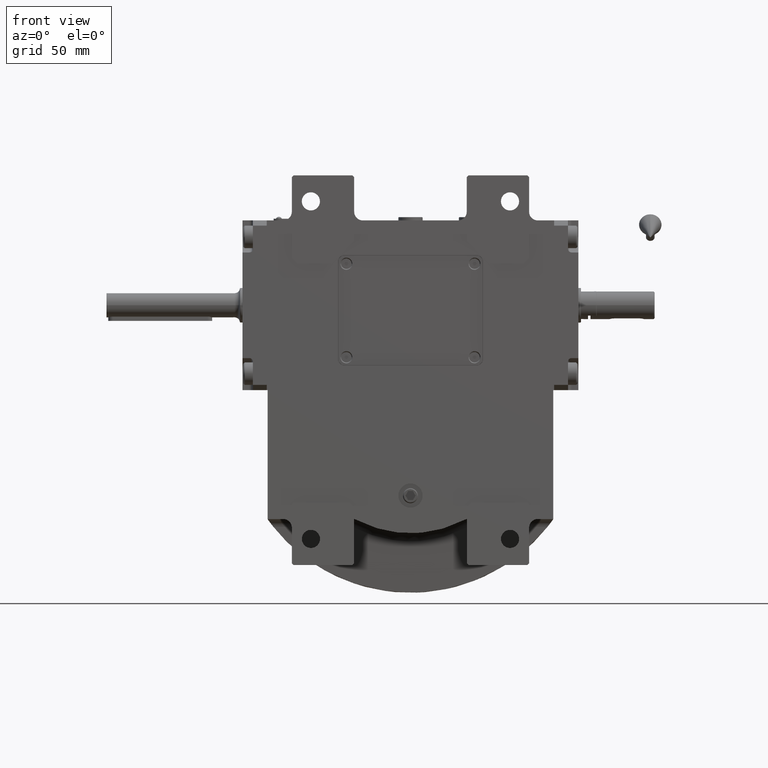
[diagram: clean part render]
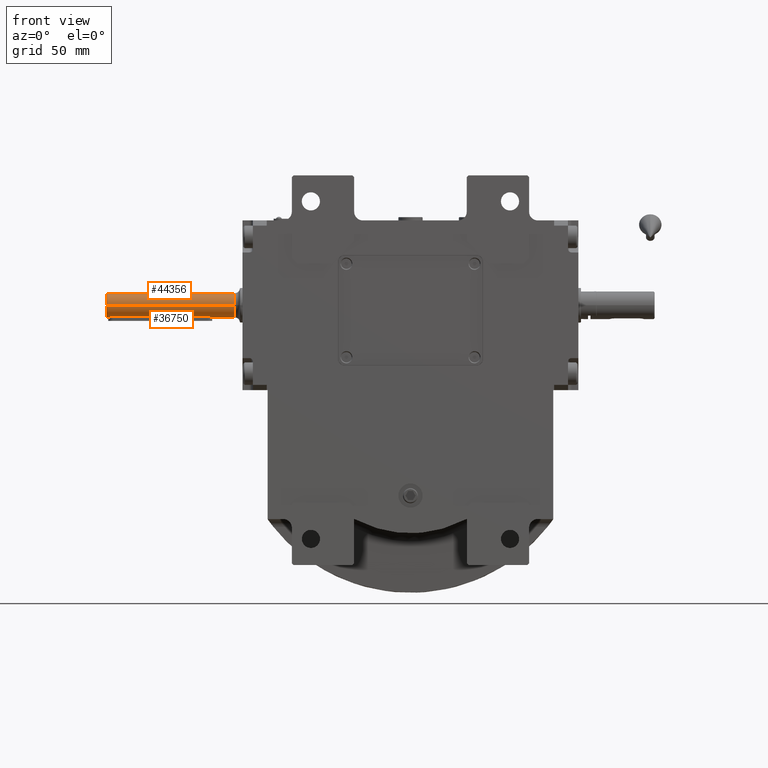
[diagram: same view with one multi-face feature highlighted, each face labeled with its STEP entity id]
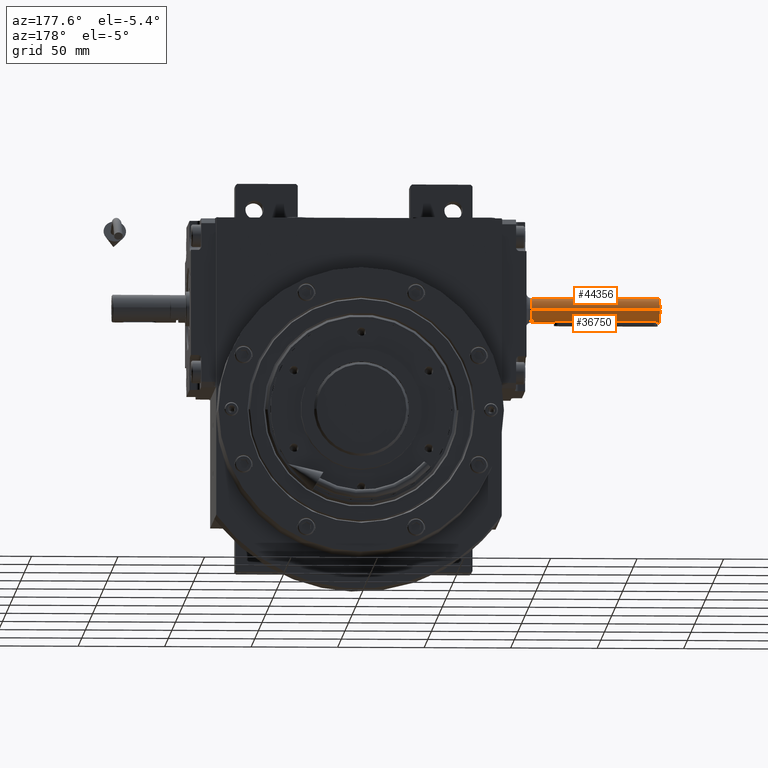
[diagram: same view with one multi-face feature highlighted, each face labeled with its STEP entity id]
A machine part, front view. The highlighted faces form ONE feature: a constant-radius fillet chain: 2 tangent blend faces with common blend radius 7 mm. The faces share edges in the B-rep.
A second angle (auxiliary view) of the same feature is appended — it is thin or edge-on in the first view.
Their STEP definitions:
[1] entity #44356 (Cylinder):
#130 = CYLINDRICAL_SURFACE ( 'NONE', #58496, 7.000000000000000000 ) ;
#1679 = AXIS2_PLACEMENT_3D ( 'NONE', #27661, #27978, #3143 ) ;
#3143 = DIRECTION ( 'NONE',  ( -1.000000000000000000, 0.000000000000000000, 7.612957883143930338E-15 ) ) ;
#4857 = CARTESIAN_POINT ( 'NONE',  ( 7.000000000000000000, -142.5000000000000000, 0.000000000000000000 ) ) ;
#6195 = LINE ( 'NONE', #25893, #50439 ) ;
#13567 = EDGE_CURVE ( 'NONE', #48163, #29369, #57633, .T. ) ;
#14931 = CARTESIAN_POINT ( 'NONE',  ( 2.619264724366640760E-29, -65.50000000000000000, 0.000000000000000000 ) ) ;
#22354 = EDGE_CURVE ( 'NONE', #48163, #38969, #36359, .T. ) ;
#23660 = DIRECTION ( 'NONE',  ( -4.203207281776613682E-31, 1.000000000000000000, 1.257247067695987565E-30 ) ) ;
#24180 = ORIENTED_EDGE ( 'NONE', *, *, #13567, .F. ) ;
#25893 = CARTESIAN_POINT ( 'NONE',  ( 7.000000000000000000, -68.49447522401361255, 0.000000000000000000 ) ) ;
#26407 = CARTESIAN_POINT ( 'NONE',  ( -7.000000000000000000, -142.5000000000000000, 0.000000000000000000 ) ) ;
#26532 = ORIENTED_EDGE ( 'NONE', *, *, #22354, .T. ) ;
#27661 = CARTESIAN_POINT ( 'NONE',  ( 4.440892098501280916E-16, -142.5000000000000000, 0.000000000000000000 ) ) ;
#27978 = DIRECTION ( 'NONE',  ( 4.203207281776613682E-31, -1.000000000000000000, -1.257247067695987565E-30 ) ) ;
#29326 = CARTESIAN_POINT ( 'NONE',  ( -7.000000000000000000, -68.49447550347869651, 8.604228440844963188E-13 ) ) ;
#29369 = VERTEX_POINT ( 'NONE', #26407 ) ;
#29553 = EDGE_CURVE ( 'NONE', #29369, #35732, #37694, .T. ) ;
#35018 = DIRECTION ( 'NONE',  ( -7.714463903220843757E-14, -0.9999999999999872324, 1.596940992141810312E-07 ) ) ;
#35732 = VERTEX_POINT ( 'NONE', #4857 ) ;
#36359 = CIRCLE ( 'NONE', #49780, 7.000000000000000000 ) ;
#37338 = DIRECTION ( 'NONE',  ( 4.203207281776613682E-31, -1.000000000000000000, -1.257247067695987565E-30 ) ) ;
#37694 = CIRCLE ( 'NONE', #1679, 7.000000000000000000 ) ;
#38969 = VERTEX_POINT ( 'NONE', #55011 ) ;
#39209 = DIRECTION ( 'NONE',  ( -1.000000000000000000, 7.731910350068054658E-14, 2.042368570163189008E-14 ) ) ;
#43330 = DIRECTION ( 'NONE',  ( 1.000000000000000000, 0.000000000000000000, -7.549516567451066053E-15 ) ) ;
#43623 = VECTOR ( 'NONE', #37338, 1000.000000000000000 ) ;
#44356 = ADVANCED_FACE ( 'NONE', ( #53294 ), #130, .T. ) ;
#44727 = CARTESIAN_POINT ( 'NONE',  ( -4.440892098494062839E-16, -68.49447522401410993, -8.326672684688674053E-14 ) ) ;
#45636 = ORIENTED_EDGE ( 'NONE', *, *, #47822, .T. ) ;
#46019 = ORIENTED_EDGE ( 'NONE', *, *, #29553, .F. ) ;
#47822 = EDGE_CURVE ( 'NONE', #38969, #35732, #6195, .T. ) ;
#48163 = VERTEX_POINT ( 'NONE', #29326 ) ;
#48616 = EDGE_LOOP ( 'NONE', ( #45636, #46019, #24180, #26532 ) ) ;
#49780 = AXIS2_PLACEMENT_3D ( 'NONE', #44727, #35018, #39209 ) ;
#50439 = VECTOR ( 'NONE', #53015, 1000.000000000000000 ) ;
#53015 = DIRECTION ( 'NONE',  ( 4.203207281776613682E-31, -1.000000000000000000, -1.257247067695987565E-30 ) ) ;
#53294 = FACE_OUTER_BOUND ( 'NONE', #48616, .T. ) ;
#55011 = CARTESIAN_POINT ( 'NONE',  ( 7.000000000000000000, -68.49447550347869651, -8.465450562766818621E-13 ) ) ;
#57322 = CARTESIAN_POINT ( 'NONE',  ( -7.000000000000000000, -68.49447522401361255, 1.387778780781445676E-14 ) ) ;
#57633 = LINE ( 'NONE', #57322, #43623 ) ;
#58496 = AXIS2_PLACEMENT_3D ( 'NONE', #14931, #23660, #43330 ) ;
[2] entity #36750 (Cylinder):
#838 = FACE_OUTER_BOUND ( 'NONE', #23794, .T. ) ;
#1111 = CARTESIAN_POINT ( 'NONE',  ( -1.198851016611573339, -141.1949139009957435, 6.896217747366740092 ) ) ;
#1145 = DIRECTION ( 'NONE',  ( 1.000000000000000000, 0.000000000000000000, -7.549516567451066053E-15 ) ) ;
#1221 = CARTESIAN_POINT ( 'NONE',  ( 0.3170784478535836337, -141.4852633581818679, 6.994464549906443729 ) ) ;
#1847 = CARTESIAN_POINT ( 'NONE',  ( 1.402478389948947468, -141.0711531709463884, 6.857591528903615341 ) ) ;
#2043 = CARTESIAN_POINT ( 'NONE',  ( -1.264927412993874345, -141.1579109625762669, 6.884312819875538558 ) ) ;
#2097 = VERTEX_POINT ( 'NONE', #14065 ) ;
#2223 = CARTESIAN_POINT ( 'NONE',  ( 1.806749400005421835, -82.27188372086030199, 6.762916963001225135 ) ) ;
#2553 = CARTESIAN_POINT ( 'NONE',  ( 1.264927836960026974, -81.84208928774769731, 6.884312700417371644 ) ) ;
#2781 = CARTESIAN_POINT ( 'NONE',  ( -1.843657680115194042, -140.6886845730293203, 6.753031647673610749 ) ) ;
#2853 = CARTESIAN_POINT ( 'NONE',  ( 0.9753538769559563226, -81.69810979600516987, 6.931670329307685563 ) ) ;
#3097 = CARTESIAN_POINT ( 'NONE',  ( -2.321342884217489022, -139.9281917427242945, 6.603653375273489168 ) ) ;
#3166 = CARTESIAN_POINT ( 'NONE',  ( 1.620478834935417556, -82.08492488264805331, 6.811594544090031178 ) ) ;
#3406 = CIRCLE ( 'NONE', #29243, 7.000000000000000000 ) ;
#3493 = CARTESIAN_POINT ( 'NONE',  ( -1.925956821454098078, -82.39044479252004294, 6.731873993788235033 ) ) ;
#3551 = VECTOR ( 'NONE', #42780, 1000.000000000000000 ) ;
#4857 = CARTESIAN_POINT ( 'NONE',  ( 7.000000000000000000, -142.5000000000000000, 0.000000000000000000 ) ) ;
#5291 = EDGE_CURVE ( 'NONE', #38111, #2097, #37170, .T. ) ;
#5526 = CIRCLE ( 'NONE', #8576, 7.000000000000000000 ) ;
#5602 = LINE ( 'NONE', #25289, #11489 ) ;
#5754 = DIRECTION ( 'NONE',  ( 7.511451692933122325E-14, -0.9999999999999872324, -1.596940992141815342E-07 ) ) ;
#6038 = CARTESIAN_POINT ( 'NONE',  ( 0.9268793027599840917, -141.3218736548701031, 6.938343378647666704 ) ) ;
#6195 = LINE ( 'NONE', #25893, #50439 ) ;
#6344 = CARTESIAN_POINT ( 'NONE',  ( 2.299351147703093901, -139.9813566429018294, 6.611329931354303469 ) ) ;
#6964 = CARTESIAN_POINT ( 'NONE',  ( -1.944947227106512688, -140.5714690875497581, 6.724991716942826159 ) ) ;
#7035 = CARTESIAN_POINT ( 'NONE',  ( 2.033857760548529736, -82.54302979477220958, 6.699211607909197674 ) ) ;
#7347 = CARTESIAN_POINT ( 'NONE',  ( 2.499999999999970690, -83.99999999999998579, 6.538348415311243222 ) ) ;
#7679 = EDGE_CURVE ( 'NONE', #45828, #26607, #20804, .T. ) ;
#7682 = CARTESIAN_POINT ( 'NONE',  ( 0.9685343945963725831, -81.69523215420204565, 6.932631621532264532 ) ) ;
#7980 = CARTESIAN_POINT ( 'NONE',  ( 1.843657648458670417, -82.31131538056170882, 6.753031715469722585 ) ) ;
#8294 = CARTESIAN_POINT ( 'NONE',  ( -1.620227672983530542, -82.09545532423678083, 6.809773412817396121 ) ) ;
#8576 = AXIS2_PLACEMENT_3D ( 'NONE', #45100, #5754, #50866 ) ;
#9320 = DIRECTION ( 'NONE',  ( 1.000000000000000000, 0.000000000000000000, -7.612957883143930338E-15 ) ) ;
#9601 = CARTESIAN_POINT ( 'NONE',  ( 0.1564925395796487873, -141.5000000000000284, 6.999999942951317777 ) ) ;
#10551 = CARTESIAN_POINT ( 'NONE',  ( 2.169637036070863001, -140.2447138218907696, 6.656285809622921157 ) ) ;
#11174 = CARTESIAN_POINT ( 'NONE',  ( 0.6402822353196166993, -141.4180863961333330, 6.970939257768573150 ) ) ;
#11366 = CARTESIAN_POINT ( 'NONE',  ( -0.9685366710973987159, -141.3047668890376656, 6.932631452457759913 ) ) ;
#11489 = VECTOR ( 'NONE', #20430, 1000.000000000000000 ) ;
#11809 = CARTESIAN_POINT ( 'NONE',  ( -2.033854104333290724, -140.4569751952937224, 6.699212749215070595 ) ) ;
#12102 = ORIENTED_EDGE ( 'NONE', *, *, #7679, .F. ) ;
#12108 = CARTESIAN_POINT ( 'NONE',  ( -2.358653061588350752, -139.8303938365995407, 6.590692682635773458 ) ) ;
#12182 = CARTESIAN_POINT ( 'NONE',  ( -0.6402432926228898147, -81.58190303608344607, 6.970944437102292390 ) ) ;
#12427 = CARTESIAN_POINT ( 'NONE',  ( -2.311986419970722295, -139.9511800131812151, 6.606912727717906719 ) ) ;
#12500 = CARTESIAN_POINT ( 'NONE',  ( 2.413344037805234876, -83.34251504987720693, 6.571739868337928669 ) ) ;
#12836 = CARTESIAN_POINT ( 'NONE',  ( 1.471396022785844915, -81.97232200702158877, 6.844200074925813837 ) ) ;
#13138 = CARTESIAN_POINT ( 'NONE',  ( -0.8217352683395043877, -81.63823363072809514, 6.951741376257184690 ) ) ;
#13567 = EDGE_CURVE ( 'NONE', #48163, #29369, #57633, .T. ) ;
#14065 = CARTESIAN_POINT ( 'NONE',  ( 2.904319238364353201E-10, -141.4999999999574243, 6.999999999987402077 ) ) ;
#14099 = CARTESIAN_POINT ( 'NONE',  ( 2.904319238364353201E-10, -141.4999999999574243, 6.999999999987402077 ) ) ;
#14953 = EDGE_CURVE ( 'NONE', #45828, #18284, #53684, .T. ) ;
#15161 = B_SPLINE_CURVE_WITH_KNOTS ( 'NONE', 3,
 ( #14099, #9601, #1221, #35694, #11174, #21210, #46024, #31510, #6038, #51149, #41185, #55996, #20884, #45391, #1847, #30562, #30866, #50211, #36006, #25735, #21510, #25118, #59866, #50517, #10551, #16329, #31178, #45725, #40563, #60192, #6344, #26364, #35399, #36320, #20260, #50846, #40232 ),
 .UNSPECIFIED., .F., .F.,
 ( 4, 2, 2, 1, 1, 1, 2, 2, 2, 2, 2, 2, 2, 2, 2, 2, 1, 1, 2, 2, 4 ),
 ( 0.5000000000000000000, 0.5625000000001348921, 0.5937500000002022826, 0.6093750000002374767, 0.6171875000002550182, 0.6210937500002620126, 0.6230468750002636780, 0.6250000000002653433, 0.6875000000002406964, 0.7187500000002255973, 0.7343750000002180478, 0.7421875000002171596, 0.7500000000002161604, 0.8125000000002345901, 0.8437500000002438050, 0.8593750000002424727, 0.8671875000002418066, 0.8710937500002344791, 0.8730468750002380318, 0.8750000000002415845, 1.000000000000000000 ),
 .UNSPECIFIED. ) ;
#16329 = CARTESIAN_POINT ( 'NONE',  ( 2.205100413882027155, -140.1798008096774026, 6.644266272728534872 ) ) ;
#16583 = AXIS2_PLACEMENT_3D ( 'NONE', #31961, #27161, #1145 ) ;
#17032 = CARTESIAN_POINT ( 'NONE',  ( -2.169636957026605639, -82.75528604104765407, 6.656285843554386794 ) ) ;
#17258 = CARTESIAN_POINT ( 'NONE',  ( -2.377767149570932492, -139.7732091912360204, 6.584074234858515062 ) ) ;
#17335 = CARTESIAN_POINT ( 'NONE',  ( 2.311985219604127728, -83.04881707070207142, 6.606912936604294906 ) ) ;
#17654 = CARTESIAN_POINT ( 'NONE',  ( 1.786313235288830237, -82.25078184435152195, 6.768316568828186774 ) ) ;
#17992 = CARTESIAN_POINT ( 'NONE',  ( -1.196004042038676385, -81.79862345267915202, 6.897704241265031122 ) ) ;
#18284 = VERTEX_POINT ( 'NONE', #48621 ) ;
#18290 = CARTESIAN_POINT ( 'NONE',  ( -0.1564630144325977745, -81.49999998314621052, 7.000003712700323177 ) ) ;
#18371 = EDGE_CURVE ( 'NONE', #2097, #18284, #15161, .T. ) ;
#18951 = CARTESIAN_POINT ( 'NONE',  ( -2.306286865873868219, -83.03508267427504563, 6.608900313095974255 ) ) ;
#20186 = FACE_BOUND ( 'NONE', #46890, .T. ) ;
#20260 = CARTESIAN_POINT ( 'NONE',  ( 2.430010459661569477, -139.6675467319903703, 6.565738879346174173 ) ) ;
#20430 = DIRECTION ( 'NONE',  ( 4.203207281776613682E-31, -1.000000000000000000, -1.257247067695987565E-30 ) ) ;
#20657 = EDGE_CURVE ( 'NONE', #26607, #38111, #5602, .T. ) ;
#20767 = CARTESIAN_POINT ( 'NONE',  ( -1.471395743275391244, -141.0276782034810026, 6.844200077057851495 ) ) ;
#20804 = B_SPLINE_CURVE_WITH_KNOTS ( 'NONE', 3,
 ( #7347, #27054, #51209, #42839, #12500, #26739, #37662, #61827, #52489, #46390, #17335, #62462, #61508, #22218, #41883, #7035, #37017, #57016, #51530, #7980, #2223, #17654, #3166, #12836, #2553, #56680, #47029, #22845, #51868, #57320, #32190, #2853, #7682, #32521, #36704, #21889, #18290, #47339, #27379, #12182, #22523, #13138, #52180, #57632, #27686, #41582, #42195, #42517, #17992, #62166, #37337, #32823, #8294, #27999, #37968, #47654, #61207, #3493, #23180, #17032, #56356, #31876, #46723, #28632, #38929, #58911, #29605, #58277, #18951, #23796, #33781, #49248 ),
 .UNSPECIFIED., .F., .F.,
 ( 4, 2, 2, 1, 1, 1, 2, 2, 2, 2, 2, 2, 2, 2, 2, 2, 1, 1, 2, 2, 2, 2, 2, 1, 1, 1, 2, 2, 2, 2, 2, 2, 2, 2, 2, 2, 1, 1, 2, 2, 4 ),
 ( 0.000000000000000000, 0.06250000000017609525, 0.09375000000026414981, 0.1093750000003081424, 0.1171875000003301387, 0.1210937500003386180, 0.1230468750003403111, 0.1250000000003420042, 0.1875000000002939038, 0.2187500000002720879, 0.2343750000002594591, 0.2421875000002531586, 0.2500000000002468581, 0.3125000000002022826, 0.3437500000001786349, 0.3593750000001654787, 0.3671875000001588729, 0.3710937500001542100, 0.3730468750001532663, 0.3750000000001523226, 0.5000000000001310063, 0.5625000000001204592, 0.5937500000001151301, 0.6093750000001117995, 0.6171875000001100231, 0.6210937500001082467, 0.6230468750001083578, 0.6250000000001083578, 0.6875000000001252332, 0.7187500000001336709, 0.7343750000001365574, 0.7421875000001393330, 0.7500000000001421085, 0.8125000000001647571, 0.8437500000001760814, 0.8593750000001816325, 0.8671875000001811884, 0.8710937500001810774, 0.8730468750001773026, 0.8750000000001736389, 1.000000000000000000 ),
 .UNSPECIFIED. ) ;
#20884 = CARTESIAN_POINT ( 'NONE',  ( 1.069691369736837538, -141.2626159537201147, 6.918575316827006105 ) ) ;
#21210 = CARTESIAN_POINT ( 'NONE',  ( 0.7613312870820188039, -141.3816276915835886, 6.958484708952836328 ) ) ;
#21510 = CARTESIAN_POINT ( 'NONE',  ( 1.730988141896310895, -140.8039741894769747, 6.782653825600481134 ) ) ;
#21889 = CARTESIAN_POINT ( 'NONE',  ( 0.3129268367448402866, -81.50000003370762158, 6.999992574562890368 ) ) ;
#22218 = CARTESIAN_POINT ( 'NONE',  ( 2.212505758774764963, -82.82468394634392439, 6.642525834455735634 ) ) ;
#22523 = CARTESIAN_POINT ( 'NONE',  ( -0.7613033959195528722, -81.61836332755721912, 6.958488472892880417 ) ) ;
#22845 = CARTESIAN_POINT ( 'NONE',  ( 1.075213098407430845, -81.74280090573893176, 6.916729113992071909 ) ) ;
#23180 = CARTESIAN_POINT ( 'NONE',  ( -2.041172808311892073, -82.54735998050664136, 6.697507944254735612 ) ) ;
#23794 = EDGE_LOOP ( 'NONE', ( #48445, #45670, #32537, #59295 ) ) ;
#23796 = CARTESIAN_POINT ( 'NONE',  ( -2.430010701084477365, -83.33245386411562095, 6.565738785009558320 ) ) ;
#25118 = CARTESIAN_POINT ( 'NONE',  ( 1.748130629486650323, -140.7874059987333055, 6.778281066856579606 ) ) ;
#25289 = CARTESIAN_POINT ( 'NONE',  ( -2.500000000000029754, -83.99999999999998579, 6.538348415311243222 ) ) ;
#25615 = CARTESIAN_POINT ( 'NONE',  ( -1.105417198209713847, -141.2426046276831357, 6.911876158431500272 ) ) ;
#25735 = CARTESIAN_POINT ( 'NONE',  ( 1.694045548191341233, -140.8387094670822819, 6.791907734674245134 ) ) ;
#25893 = CARTESIAN_POINT ( 'NONE',  ( 7.000000000000000000, -68.49447522401361255, 0.000000000000000000 ) ) ;
#26364 = CARTESIAN_POINT ( 'NONE',  ( 2.303191245311683399, -139.9722760380825548, 6.609983914404035765 ) ) ;
#26407 = CARTESIAN_POINT ( 'NONE',  ( -7.000000000000000000, -142.5000000000000000, 0.000000000000000000 ) ) ;
#26607 = VERTEX_POINT ( 'NONE', #45669 ) ;
#26739 = CARTESIAN_POINT ( 'NONE',  ( 2.377763337955012268, -83.22677914876219063, 6.584075972253588205 ) ) ;
#27054 = CARTESIAN_POINT ( 'NONE',  ( 2.499999999999951150, -83.83004298793331088, 6.540396064447613789 ) ) ;
#27161 = DIRECTION ( 'NONE',  ( -4.203207281776613682E-31, 1.000000000000000000, 1.257247067695987565E-30 ) ) ;
#27307 = CARTESIAN_POINT ( 'NONE',  ( -2.433538092208666015, -139.5784802009935675, 6.564713298729710544 ) ) ;
#27379 = CARTESIAN_POINT ( 'NONE',  ( -0.5592779253698710873, -81.56197285031076660, 6.977864107825928031 ) ) ;
#27686 = CARTESIAN_POINT ( 'NONE',  ( -0.9418375089946829926, -81.68419104449345980, 6.936316725823672869 ) ) ;
#27999 = CARTESIAN_POINT ( 'NONE',  ( -1.675571103909961446, -82.14444927061747137, 6.796442930147240880 ) ) ;
#28245 = ORIENTED_EDGE ( 'NONE', *, *, #18371, .F. ) ;
#28632 = CARTESIAN_POINT ( 'NONE',  ( -2.281363817212304745, -82.97745671313964522, 6.617666934678833712 ) ) ;
#29243 = AXIS2_PLACEMENT_3D ( 'NONE', #59600, #30310, #9320 ) ;
#29326 = CARTESIAN_POINT ( 'NONE',  ( -7.000000000000000000, -68.49447550347869651, 8.604228440844963188E-13 ) ) ;
#29369 = VERTEX_POINT ( 'NONE', #26407 ) ;
#29605 = CARTESIAN_POINT ( 'NONE',  ( -2.303191256750203753, -83.02772398899817574, 6.609983918829184013 ) ) ;
#30310 = DIRECTION ( 'NONE',  ( 4.203207281776613682E-31, -1.000000000000000000, -1.257247067695987565E-30 ) ) ;
#30486 = CYLINDRICAL_SURFACE ( 'NONE', #16583, 7.000000000000000000 ) ;
#30562 = CARTESIAN_POINT ( 'NONE',  ( 1.474062284529309874, -141.0213255128912238, 6.842752932013557832 ) ) ;
#30866 = CARTESIAN_POINT ( 'NONE',  ( 1.583440718200878283, -140.9351665571411729, 6.818293503923985810 ) ) ;
#31178 = CARTESIAN_POINT ( 'NONE',  ( 2.249685291013457711, -140.0908783332031646, 6.628818716627643326 ) ) ;
#31498 = CARTESIAN_POINT ( 'NONE',  ( -1.913041338014342063, -140.6102759165345049, 6.734015365805034570 ) ) ;
#31510 = CARTESIAN_POINT ( 'NONE',  ( 0.8919099857232338779, -141.3356588515854355, 6.942959774873767920 ) ) ;
#31801 = CARTESIAN_POINT ( 'NONE',  ( -2.500000000000044409, -139.0000000000000000, 6.538348415311243222 ) ) ;
#31876 = CARTESIAN_POINT ( 'NONE',  ( -2.249685248184827735, -82.90912157797816917, 6.628818742037368317 ) ) ;
#31961 = CARTESIAN_POINT ( 'NONE',  ( 2.619264724366640760E-29, -65.50000000000000000, 0.000000000000000000 ) ) ;
#32115 = CARTESIAN_POINT ( 'NONE',  ( -2.084045818920243764, -140.3832535580029628, 6.683749409208399328 ) ) ;
#32190 = CARTESIAN_POINT ( 'NONE',  ( 0.9856352471582016106, -81.70247502298354902, 6.930211211926355475 ) ) ;
#32521 = CARTESIAN_POINT ( 'NONE',  ( 0.9667432313398980348, -81.69447693860684012, 6.932883931380762199 ) ) ;
#32537 = ORIENTED_EDGE ( 'NONE', *, *, #47822, .F. ) ;
#32823 = CARTESIAN_POINT ( 'NONE',  ( -1.583440824242561717, -82.06483352946713694, 6.818293479050176131 ) ) ;
#33781 = CARTESIAN_POINT ( 'NONE',  ( -2.500000000000050626, -83.66000604028157284, 6.542442826917651999 ) ) ;
#34611 = ORIENTED_EDGE ( 'NONE', *, *, #14953, .T. ) ;
#35399 = CARTESIAN_POINT ( 'NONE',  ( 2.305716626223727417, -139.9662719318419022, 6.609100016381157516 ) ) ;
#35694 = CARTESIAN_POINT ( 'NONE',  ( 0.5593208645382958810, -141.4380172981124701, 6.977858456307050261 ) ) ;
#35732 = VERTEX_POINT ( 'NONE', #4857 ) ;
#36006 = CARTESIAN_POINT ( 'NONE',  ( 1.675570987540605294, -140.8555508344096836, 6.796442958679691948 ) ) ;
#36192 = CARTESIAN_POINT ( 'NONE',  ( -0.6432494975412067495, -141.4403501413004562, 6.977858630683352104 ) ) ;
#36309 = CARTESIAN_POINT ( 'NONE',  ( -2.212502355986055491, -140.1753224447370201, 6.642527304623889073 ) ) ;
#36320 = CARTESIAN_POINT ( 'NONE',  ( 2.306286850926785981, -139.9649173614025983, 6.608900310288718494 ) ) ;
#36632 = CARTESIAN_POINT ( 'NONE',  ( -2.315744157561216099, -139.9419944906025535, 6.605603360580844630 ) ) ;
#36704 = CARTESIAN_POINT ( 'NONE',  ( 0.6433017325147205590, -81.55967201832561386, 6.977851147936529941 ) ) ;
#36750 = ADVANCED_FACE ( 'NONE', ( #838, #20186 ), #30486, .T. ) ;
#37017 = CARTESIAN_POINT ( 'NONE',  ( 1.944949509345526906, -82.42853371071392132, 6.724991083942420289 ) ) ;
#37170 = B_SPLINE_CURVE_WITH_KNOTS ( 'NONE', 3,
 ( #31801, #56932, #47266, #27307, #41490, #17258, #12108, #46958, #3097, #36632, #12427, #60799, #42119, #36309, #32115, #11809, #6964, #31498, #51140, #2781, #56286, #55863, #49792, #20767, #2043, #1111, #25615, #45281, #54614, #40441, #60380, #54936, #11366, #40121, #36192, #61008, #45910 ),
 .UNSPECIFIED., .F., .F.,
 ( 4, 2, 2, 1, 1, 1, 2, 2, 2, 2, 2, 2, 2, 2, 2, 2, 1, 1, 2, 2, 4 ),
 ( 0.000000000000000000, 0.06250000000026403879, 0.09375000000040119297, 0.1093750000004697909, 0.1171875000005041106, 0.1210937500005262873, 0.1230468750005373757, 0.1250000000005484779, 0.1875000000004585221, 0.2187500000004135026, 0.2343750000003910761, 0.2421875000003798351, 0.2500000000003685940, 0.3125000000002841061, 0.3437500000002419176, 0.3593750000002179923, 0.3671875000002060019, 0.3710937500002000067, 0.3730468750001941225, 0.3750000000001882938, 0.5000000000000000000 ),
 .UNSPECIFIED. ) ;
#37337 = CARTESIAN_POINT ( 'NONE',  ( -1.474062379370358666, -81.97867455566053252, 6.842752911106530611 ) ) ;
#37338 = DIRECTION ( 'NONE',  ( 4.203207281776613682E-31, -1.000000000000000000, -1.257247067695987565E-30 ) ) ;
#37662 = CARTESIAN_POINT ( 'NONE',  ( 2.358649683743019310, -83.16959672604369302, 6.590694039505726742 ) ) ;
#37968 = CARTESIAN_POINT ( 'NONE',  ( -1.694045666695583430, -82.16129064203580867, 6.791907705370357817 ) ) ;
#38111 = VERTEX_POINT ( 'NONE', #45325 ) ;
#38929 = CARTESIAN_POINT ( 'NONE',  ( -2.290020169670569317, -82.99693750901339229, 6.614611838603773109 ) ) ;
#38969 = VERTEX_POINT ( 'NONE', #55011 ) ;
#40121 = CARTESIAN_POINT ( 'NONE',  ( -0.9667464860035789309, -141.3055216988255154, 6.932883626724182236 ) ) ;
#40232 = CARTESIAN_POINT ( 'NONE',  ( 2.499999999999956035, -139.0000000000000000, 6.538348415311243222 ) ) ;
#40441 = CARTESIAN_POINT ( 'NONE',  ( -1.009988544472852912, -141.2869919156774472, 6.926686268999866058 ) ) ;
#40563 = CARTESIAN_POINT ( 'NONE',  ( 2.281363831939534403, -140.0225432538077825, 6.617666919370700285 ) ) ;
#41185 = CARTESIAN_POINT ( 'NONE',  ( 0.9518091448801109244, -141.3117284342879714, 6.934954057544961969 ) ) ;
#41490 = CARTESIAN_POINT ( 'NONE',  ( -2.413348263343344513, -139.6574697284125079, 6.571737524791346985 ) ) ;
#41582 = CARTESIAN_POINT ( 'NONE',  ( -0.9518075507991851092, -81.68827090730869145, 6.934954282224351729 ) ) ;
#41883 = CARTESIAN_POINT ( 'NONE',  ( 2.084049731090976021, -82.61675233309873079, 6.683748075692070856 ) ) ;
#42119 = CARTESIAN_POINT ( 'NONE',  ( -2.268908392654587658, -140.0547569323092603, 6.621936455481547412 ) ) ;
#42195 = CARTESIAN_POINT ( 'NONE',  ( -0.9583960405767206758, -81.69099796890938592, 6.934044375977298280 ) ) ;
#42517 = CARTESIAN_POINT ( 'NONE',  ( -1.069691446640474330, -81.73738408325290550, 6.918575306492423138 ) ) ;
#42780 = DIRECTION ( 'NONE',  ( 4.203207281776613682E-31, -1.000000000000000000, -1.257247067695987565E-30 ) ) ;
#42839 = CARTESIAN_POINT ( 'NONE',  ( 2.433534197543217203, -83.42150338515149599, 6.564715839845642442 ) ) ;
#43623 = VECTOR ( 'NONE', #37338, 1000.000000000000000 ) ;
#45100 = CARTESIAN_POINT ( 'NONE',  ( -8.881784197008304740E-16, -68.49447522401410993, 9.714451465470119729E-14 ) ) ;
#45281 = CARTESIAN_POINT ( 'NONE',  ( -1.075213838769661256, -141.2571987360053924, 6.916729132091080423 ) ) ;
#45325 = CARTESIAN_POINT ( 'NONE',  ( -2.500000000000044409, -139.0000000000000000, 6.538348415311243222 ) ) ;
#45391 = CARTESIAN_POINT ( 'NONE',  ( 1.196003965704969918, -141.2013765877738081, 6.897704254064820795 ) ) ;
#45669 = CARTESIAN_POINT ( 'NONE',  ( -2.500000000000029754, -83.99999999999998579, 6.538348415311243222 ) ) ;
#45670 = ORIENTED_EDGE ( 'NONE', *, *, #51426, .F. ) ;
#45725 = CARTESIAN_POINT ( 'NONE',  ( 2.263109469958767939, -140.0626373254041255, 6.624099822800799231 ) ) ;
#45828 = VERTEX_POINT ( 'NONE', #57891 ) ;
#45910 = CARTESIAN_POINT ( 'NONE',  ( 2.904319238364353201E-10, -141.4999999999574243, 6.999999999987402077 ) ) ;
#46024 = CARTESIAN_POINT ( 'NONE',  ( 0.8217563748926841605, -141.3617588470881685, 6.951738496792962962 ) ) ;
#46390 = CARTESIAN_POINT ( 'NONE',  ( 2.315742744900818550, -83.05800203816836813, 6.605603668385714222 ) ) ;
#46723 = CARTESIAN_POINT ( 'NONE',  ( -2.263109437565233417, -82.93736260485670186, 6.624099844753954969 ) ) ;
#46890 = EDGE_LOOP ( 'NONE', ( #34611, #28245, #57300, #52583, #12102 ) ) ;
#46958 = CARTESIAN_POINT ( 'NONE',  ( -2.334139763838355197, -139.8958154073561673, 6.599201867344012484 ) ) ;
#47029 = CARTESIAN_POINT ( 'NONE',  ( 1.105416752089445342, -81.75739514845966482, 6.911876107818919479 ) ) ;
#47266 = CARTESIAN_POINT ( 'NONE',  ( -2.482623633892303783, -139.3369982924692181, 6.547241362494212957 ) ) ;
#47339 = CARTESIAN_POINT ( 'NONE',  ( -0.3170345861211188998, -81.51473104213766874, 6.994470203748903714 ) ) ;
#47654 = CARTESIAN_POINT ( 'NONE',  ( -1.730988264704433011, -82.19602592829870957, 6.782653794709594841 ) ) ;
#47822 = EDGE_CURVE ( 'NONE', #38969, #35732, #6195, .T. ) ;
#48163 = VERTEX_POINT ( 'NONE', #29326 ) ;
#48445 = ORIENTED_EDGE ( 'NONE', *, *, #13567, .T. ) ;
#48621 = CARTESIAN_POINT ( 'NONE',  ( 2.499999999999956035, -139.0000000000000000, 6.538348415311243222 ) ) ;
#49248 = CARTESIAN_POINT ( 'NONE',  ( -2.500000000000029754, -83.99999999999998579, 6.538348415311243222 ) ) ;
#49792 = CARTESIAN_POINT ( 'NONE',  ( -1.620479628596984911, -140.9150746980363920, 6.811594301387277284 ) ) ;
#50211 = CARTESIAN_POINT ( 'NONE',  ( 1.620227562903810314, -140.9045447691959794, 6.809773439101717507 ) ) ;
#50439 = VECTOR ( 'NONE', #53015, 1000.000000000000000 ) ;
#50517 = CARTESIAN_POINT ( 'NONE',  ( 2.041172882272316969, -140.4526399180325598, 6.697507918787467318 ) ) ;
#50846 = CARTESIAN_POINT ( 'NONE',  ( 2.499999999999950706, -139.3399945868346208, 6.542442921691856483 ) ) ;
#50866 = DIRECTION ( 'NONE',  ( 1.000000000000000000, 7.533656238527847773E-14, -2.042810365310286141E-14 ) ) ;
#51140 = CARTESIAN_POINT ( 'NONE',  ( -1.861467816819854404, -140.6690166233518653, 6.748196828527786906 ) ) ;
#51149 = CARTESIAN_POINT ( 'NONE',  ( 0.9418407536939633617, -141.3158076338189915, 6.936316272707945707 ) ) ;
#51209 = CARTESIAN_POINT ( 'NONE',  ( 2.482621474076756929, -83.66298559011885061, 6.547243876723251255 ) ) ;
#51426 = EDGE_CURVE ( 'NONE', #35732, #29369, #3406, .T. ) ;
#51530 = CARTESIAN_POINT ( 'NONE',  ( 1.861468244642320968, -82.33098384385917257, 6.748196765775116290 ) ) ;
#51868 = CARTESIAN_POINT ( 'NONE',  ( 1.031469058423611251, -81.72264861713335904, 6.923458893829164573 ) ) ;
#52180 = CARTESIAN_POINT ( 'NONE',  ( -0.8918988350601476656, -81.66433683817975009, 6.942961313086305708 ) ) ;
#52426 = CARTESIAN_POINT ( 'NONE',  ( 2.499999999999970690, -83.99999999999998579, 6.538348415311243222 ) ) ;
#52489 = CARTESIAN_POINT ( 'NONE',  ( 2.321341163747436820, -83.07180396531882138, 6.603653829035786238 ) ) ;
#52583 = ORIENTED_EDGE ( 'NONE', *, *, #20657, .F. ) ;
#53015 = DIRECTION ( 'NONE',  ( 4.203207281776613682E-31, -1.000000000000000000, -1.257247067695987565E-30 ) ) ;
#53684 = LINE ( 'NONE', #52426, #3551 ) ;
#54614 = CARTESIAN_POINT ( 'NONE',  ( -1.031470343503432918, -141.2773507994376985, 6.923458847537436789 ) ) ;
#54936 = CARTESIAN_POINT ( 'NONE',  ( -0.9753560322673263672, -141.3018892906447093, 6.931670175520911137 ) ) ;
#55011 = CARTESIAN_POINT ( 'NONE',  ( 7.000000000000000000, -68.49447550347869651, -8.465450562766818621E-13 ) ) ;
#55863 = CARTESIAN_POINT ( 'NONE',  ( -1.786315661499662255, -140.7492156822976597, 6.768315863241747721 ) ) ;
#55996 = CARTESIAN_POINT ( 'NONE',  ( 0.9583959505338969231, -141.3090020684651904, 6.934044385225677232 ) ) ;
#56286 = CARTESIAN_POINT ( 'NONE',  ( -1.806750456761789358, -140.7281151627209113, 6.762916615775071527 ) ) ;
#56356 = CARTESIAN_POINT ( 'NONE',  ( -2.205100345101944193, -82.82019905994123121, 6.644266305587588128 ) ) ;
#56680 = CARTESIAN_POINT ( 'NONE',  ( 1.198851253314369369, -81.80508621211760101, 6.896217630454200886 ) ) ;
#56932 = CARTESIAN_POINT ( 'NONE',  ( -2.500000000000048406, -139.1699463369923251, 6.540394394269773315 ) ) ;
#57016 = CARTESIAN_POINT ( 'NONE',  ( 1.913042996608780522, -82.38972601268913820, 6.734014938904745229 ) ) ;
#57300 = ORIENTED_EDGE ( 'NONE', *, *, #5291, .F. ) ;
#57320 = CARTESIAN_POINT ( 'NONE',  ( 1.009986961219742518, -81.71300738238663541, 6.926686351392050689 ) ) ;
#57322 = CARTESIAN_POINT ( 'NONE',  ( -7.000000000000000000, -68.49447522401361255, 1.387778780781445676E-14 ) ) ;
#57632 = CARTESIAN_POINT ( 'NONE',  ( -0.9268736154018590856, -81.67812406074980913, 6.938344168893558539 ) ) ;
#57633 = LINE ( 'NONE', #57322, #43623 ) ;
#57891 = CARTESIAN_POINT ( 'NONE',  ( 2.499999999999970690, -83.99999999999998579, 6.538348415311243222 ) ) ;
#58277 = CARTESIAN_POINT ( 'NONE',  ( -2.305716641133730871, -83.03372810372070489, 6.609100019272912796 ) ) ;
#58911 = CARTESIAN_POINT ( 'NONE',  ( -2.299351153984718454, -83.01864337171133457, 6.611329938033905229 ) ) ;
#59295 = ORIENTED_EDGE ( 'NONE', *, *, #62681, .T. ) ;
#59600 = CARTESIAN_POINT ( 'NONE',  ( -4.440892098499971407E-16, -142.5000000000000000, 0.000000000000000000 ) ) ;
#59866 = CARTESIAN_POINT ( 'NONE',  ( 1.925956844277094460, -140.6095552073952319, 6.731873989539012726 ) ) ;
#60192 = CARTESIAN_POINT ( 'NONE',  ( 2.290020175058282259, -140.0030624782921223, 6.614611826983196607 ) ) ;
#60380 = CARTESIAN_POINT ( 'NONE',  ( -0.9856372239692510195, -141.2975241282548495, 6.930211080583043248 ) ) ;
#60799 = CARTESIAN_POINT ( 'NONE',  ( -2.309418459482184716, -139.9573905114353636, 6.607808026027323756 ) ) ;
#61008 = CARTESIAN_POINT ( 'NONE',  ( -0.3129850791594550596, -141.5000000000000284, 7.000000114021774245 ) ) ;
#61207 = CARTESIAN_POINT ( 'NONE',  ( -1.748130775372120249, -82.21259414432952894, 6.778281029713354222 ) ) ;
#61508 = CARTESIAN_POINT ( 'NONE',  ( 2.268909834651820834, -82.94524680446596676, 6.621935480851576905 ) ) ;
#61827 = CARTESIAN_POINT ( 'NONE',  ( 2.334137397999757724, -83.10417847022955584, 6.599202644731591683 ) ) ;
#62166 = CARTESIAN_POINT ( 'NONE',  ( -1.402478478564170628, -81.92884688878844202, 6.857591510288134629 ) ) ;
#62462 = CARTESIAN_POINT ( 'NONE',  ( 2.309417406509395310, -83.04260694926969677, 6.607808167392986043 ) ) ;
#62681 = EDGE_CURVE ( 'NONE', #38969, #48163, #5526, .T. ) ;